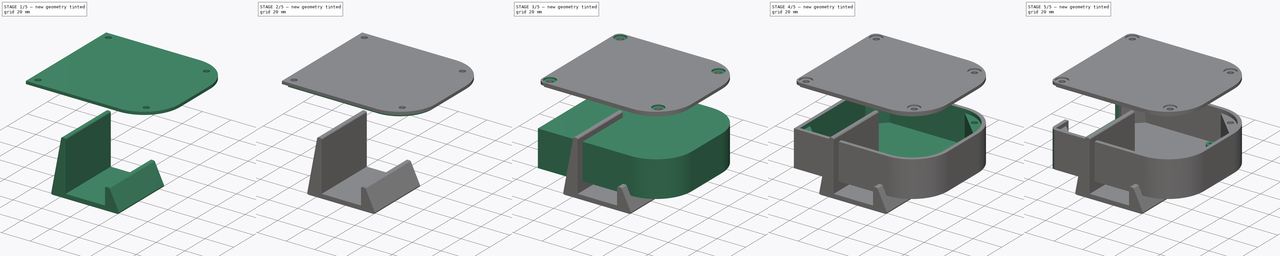
[diagram: build sequence overview — one tinted view per stage of 5, left to right]
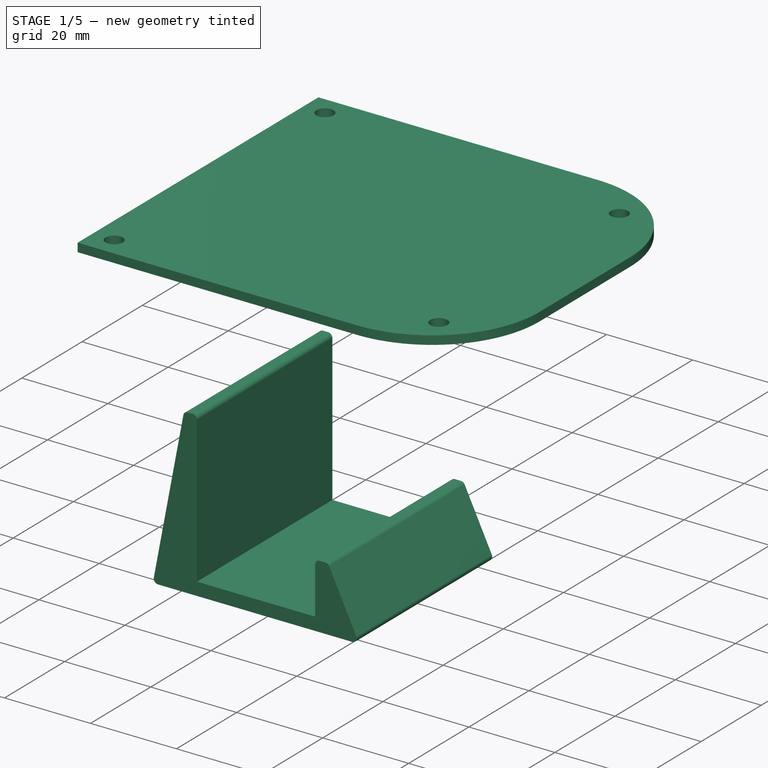
[diagram: stage 1 of 5 — iso view after this stage's code; geometry added in this stage tinted green]
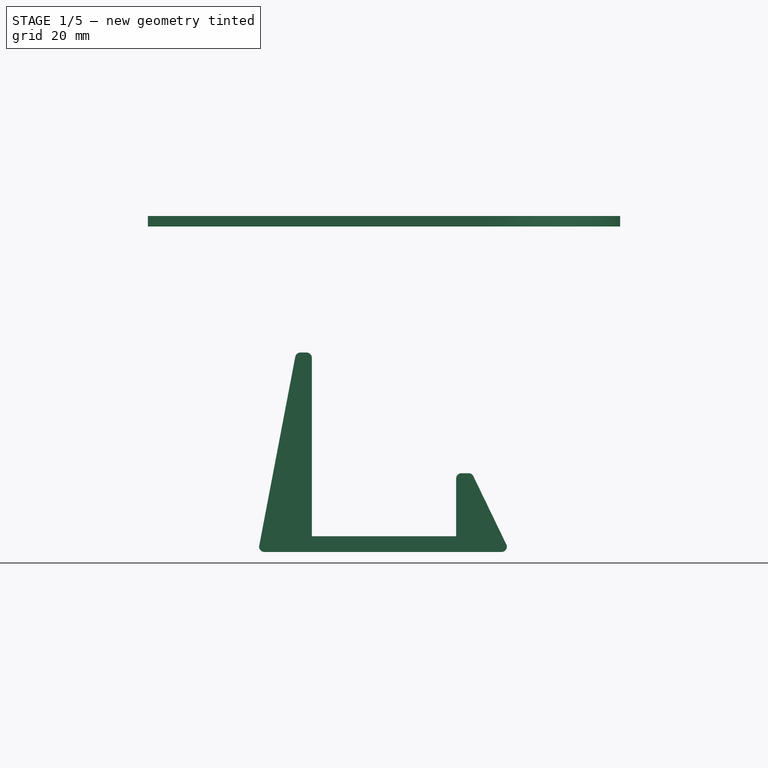
[diagram: stage 1 of 5 — front view after this stage's code; geometry added in this stage tinted green]
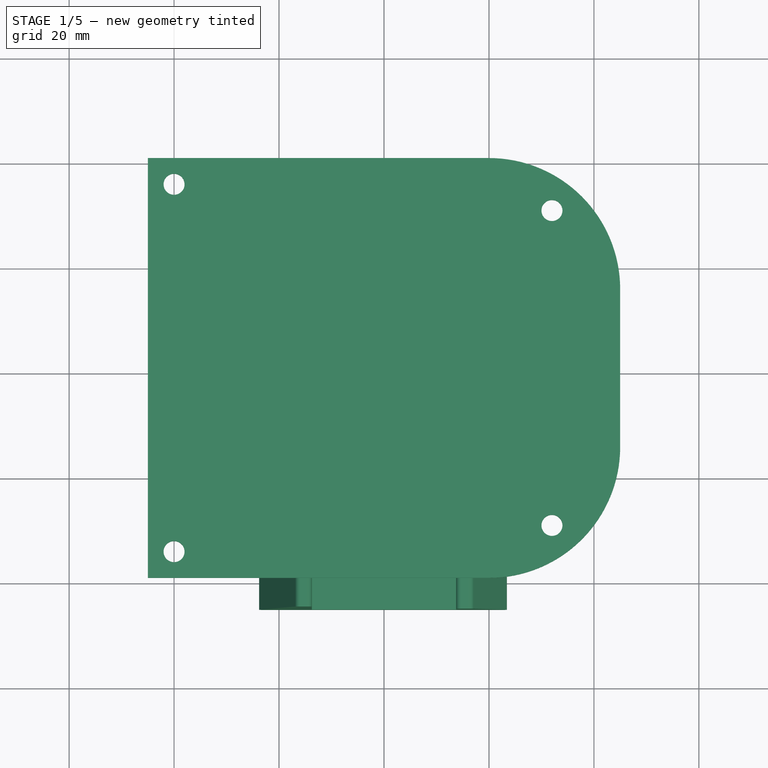
[diagram: stage 1 of 5 — top view after this stage's code; geometry added in this stage tinted green]
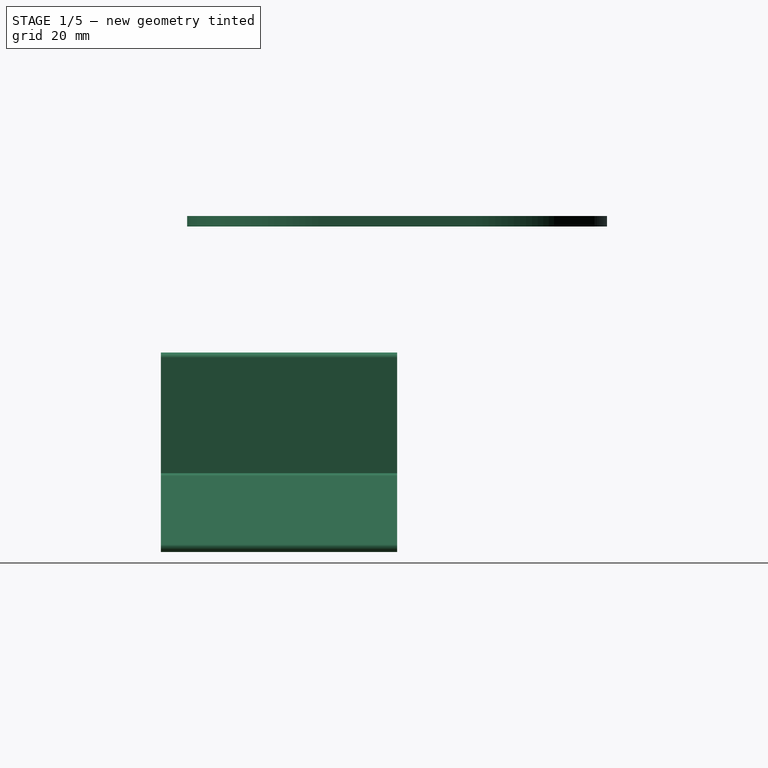
[diagram: stage 1 of 5 — right view after this stage's code; geometry added in this stage tinted green]
FCSTD DOCUMENT  (FreeCAD 0.19R24291 (Git))
Label: node_mini
License: All rights reserved
LicenseURL: http://en.wikipedia.org/wiki/All_rights_reserved
objects: Sketcher::SketchObject×10, PartDesign::Pad×7, PartDesign::Body×4, PartDesign::Pocket×3, PartDesign::Fillet×3, Part::Thickness×1, PartDesign::FeatureBase×1
note: 42 computed .brp shape members not serialized (recipe doc carries the construction recipe); baked Part::Feature solids carry a one-line shape summary decoded from their .brp

FEATURE [Sketcher::SketchObject] Sketch004
  FullyConstrained = false
  Placement = pos=(0,0,53) rot=(0,0,1;0rad)
  sketch-geometry (19):
    g0: LineSegment StartX=20 StartY=40 StartZ=0 EndX=-45 EndY=40 EndZ=0
    g1: LineSegment StartX=-45 StartY=40 StartZ=0 EndX=-45 EndY=-40 EndZ=0
    g2: LineSegment StartX=-45 StartY=-40 StartZ=0 EndX=20 EndY=-40 EndZ=0
    g3: ArcOfCircle CenterX=20 CenterY=15 CenterZ=0 NormalX=0 NormalY=0 NormalZ=1 AngleXU=0 Radius=25 StartAngle=0 EndAngle=1.5708
    g4: ArcOfCircle CenterX=20 CenterY=-15 CenterZ=0 NormalX=0 NormalY=0 NormalZ=1 AngleXU=0 Radius=25 StartAngle=4.71239 EndAngle=6.28319
    g5: LineSegment StartX=45 StartY=-15 StartZ=0 EndX=45 EndY=15 EndZ=0
    g6: LineSegment StartX=20 StartY=-15 StartZ=0 EndX=20 EndY=15 EndZ=0
    g7: LineSegment StartX=20 StartY=15 StartZ=0 EndX=20 EndY=40 EndZ=0
    g8: LineSegment StartX=20 StartY=-15 StartZ=0 EndX=20 EndY=-40 EndZ=0
    g9: LineSegment StartX=45 StartY=-15 StartZ=0 EndX=20 EndY=-15 EndZ=0
    g10: LineSegment StartX=20 StartY=-15 StartZ=0 EndX=-45 EndY=-15 EndZ=0
    g11: Circle CenterX=-40 CenterY=35 CenterZ=0 NormalX=0 NormalY=0 NormalZ=1 AngleXU=0 Radius=2
    g12: Circle CenterX=32 CenterY=30 CenterZ=0 NormalX=0 NormalY=0 NormalZ=1 AngleXU=0 Radius=2
    g13: Circle CenterX=-40 CenterY=-35 CenterZ=0 NormalX=0 NormalY=0 NormalZ=1 AngleXU=0 Radius=2
    g14: Circle CenterX=32 CenterY=-30 CenterZ=0 NormalX=0 NormalY=0 NormalZ=1 AngleXU=0 Radius=2
    g15: LineSegment StartX=-40 StartY=35 StartZ=0 EndX=32 EndY=35 EndZ=0
    g16: LineSegment StartX=32 StartY=35 StartZ=0 EndX=32 EndY=-35 EndZ=0
    g17: LineSegment StartX=32 StartY=-35 StartZ=0 EndX=-40 EndY=-35 EndZ=0
    g18: LineSegment StartX=-40 StartY=-35 StartZ=0 EndX=-40 EndY=35 EndZ=0
  constraints (47):
    c: Horizontal(g0)
    c: Coincident(g0,g1)
    c: Coincident(g1,g2)
    c: Coincident(g3,g0)
    c: Coincident(g4,g2)
    c: Coincident(g5,g4)
    c: Coincident(g5,g3)
    c: Symmetric(g4,g3,g-1)
    c: Symmetric(g4,g3,g-1)
    c: Coincident(g6,g4)
    c: Coincident(g6,g3)
    c: Coincident(g7,g3)
    c: Coincident(g7,g0)
    c: Coincident(g8,g4)
    c: Coincident(g8,g2)
    c: Vertical(g8)
    c: Vertical(g7)
    c: Coincident(g9,g4)
    c: Coincident(g9,g4)
    c: Horizontal(g9)
    c: Coincident(g10,g4)
    c: PointOnObject(g10,g1)
    c: Symmetric(g10,g4,g-2)
    c: Symmetric(g0,g1,g-1)
    c: DistanceX(g10,g4) = 90
    c: DistanceY(g1,g0) = 80
    c: DistanceY(g2,g4) = 25
    c: Coincident(g15,g16)
    c: Coincident(g16,g17)
    c: Coincident(g17,g18)
    c: Coincident(g18,g15)
    c: Horizontal(g15)
    c: Horizontal(g17)
    c: Vertical(g16)
    c: Coincident(g15,g11)
    c: Coincident(g17,g13)
    c: PointOnObject(g12,g16)
    c: Radius(g11) = 2
    c: Equal(g11,g12)
    c: Equal(g11,g14)
    c: Equal(g11,g13)
    c: Symmetric(g13,g11,g-1)
    c: Symmetric(g12,g14,g-1)
    c: DistanceY(g13,g11) = 70
    c: DistanceY(g16,g14) = 5
    c: DistanceX(g13,g16) = 72
    c: DistanceX(g13,g-1) = 40
FEATURE [PartDesign::Pad] Pad003
  AllowMultiFace = false
  Direction = (1,1,1)
  Length = 2
  Length2 = 100
  Placement = pos=(0,0,53) rot=(0,0,1;0rad)
  Profile = -> Sketch004
  Type = 0
FEATURE [PartDesign::Body] Body002
  Group = -> [Sketch004,Pad003,Sketch005,Pad004,Sketch006,Pad005,Sketch007,Pocket001,Sketch008,Pocket002,Fillet001]
  Origin = -> Origin002
  Tip = -> Fillet001
FEATURE [Sketcher::SketchObject] Sketch009
  FullyConstrained = false
  Placement = pos=(0,0,0) rot=(1,0,0;1.5708rad)
  sketch-geometry (9):
    g0: LineSegment StartX=24 StartY=-9 StartZ=0 EndX=-24 EndY=-9 EndZ=0
    g1: LineSegment StartX=-24 StartY=-9 StartZ=0 EndX=-16.75 EndY=29 EndZ=0
    g2: LineSegment StartX=-16.75 StartY=29 StartZ=0 EndX=-13.75 EndY=29 EndZ=0
    g3: LineSegment StartX=-13.75 StartY=29 StartZ=0 EndX=-13.75 EndY=-6 EndZ=0
    g4: LineSegment StartX=-13.75 StartY=-6 StartZ=0 EndX=13.75 EndY=-6 EndZ=0
    g5: LineSegment StartX=13.75 StartY=-6 StartZ=0 EndX=13.75 EndY=6 EndZ=0
    g6: LineSegment StartX=13.75 StartY=6 StartZ=0 EndX=16.75 EndY=6 EndZ=0
    g7: LineSegment StartX=16.75 StartY=6 StartZ=0 EndX=24 EndY=-9 EndZ=0
    g8: LineSegment StartX=-13.75 StartY=-6 StartZ=0 EndX=-13.75 EndY=-9 EndZ=0
  constraints (24):
    c: Coincident(g1,g0)
    c: Coincident(g2,g1)
    c: Horizontal(g2)
    c: Coincident(g3,g2)
    c: Vertical(g3)
    c: Coincident(g4,g3)
    c: Coincident(g5,g4)
    c: Coincident(g6,g5)
    c: Horizontal(g6)
    c: Coincident(g7,g6)
    c: Coincident(g7,g0)
    c: Coincident(g8,g3)
    c: PointOnObject(g8,g0)
    c: Vertical(g8)
    c: Equal(g8,g2)
    c: Equal(g2,g6)
    c: Symmetric(g3,g4,g-2)
    c: Symmetric(g0,g0,g-2)
    c: DistanceX(g4,g4) = 27.5
    c: Symmetric(g4,g5,g-1)
    c: DistanceY(g8,g8) = 3
    c: DistanceY(g3,g2) = 35
    c: DistanceY(g4,g5) = 12
    c: DistanceX(g0,g0) = 48
FEATURE [PartDesign::Pad] Pad006
  AllowMultiFace = false
  Direction = (1,1,1)
  Length = 45
  Length2 = 100
  Placement = pos=(0,0,0) rot=(1,0,0;1.5708rad)
  Profile = -> Sketch009
  Type = 0
FEATURE [PartDesign::Fillet] Fillet002
  Base = -> Pad006 [Edge1,Edge20,Edge17,Edge2,Edge5,Edge8]
  BaseFeature = -> Pad006
  Placement = pos=(0,0,0) rot=(1,0,0;1.5708rad)
  Radius = 1
  SupportTransform = false
FEATURE [PartDesign::Body] Body003
  Group = -> [Sketch009,Pad006,Fillet002]
  Origin = -> Origin003
  Placement = pos=(0,-54,0) rot=(0,0,1;0rad)
  Tip = -> Fillet002
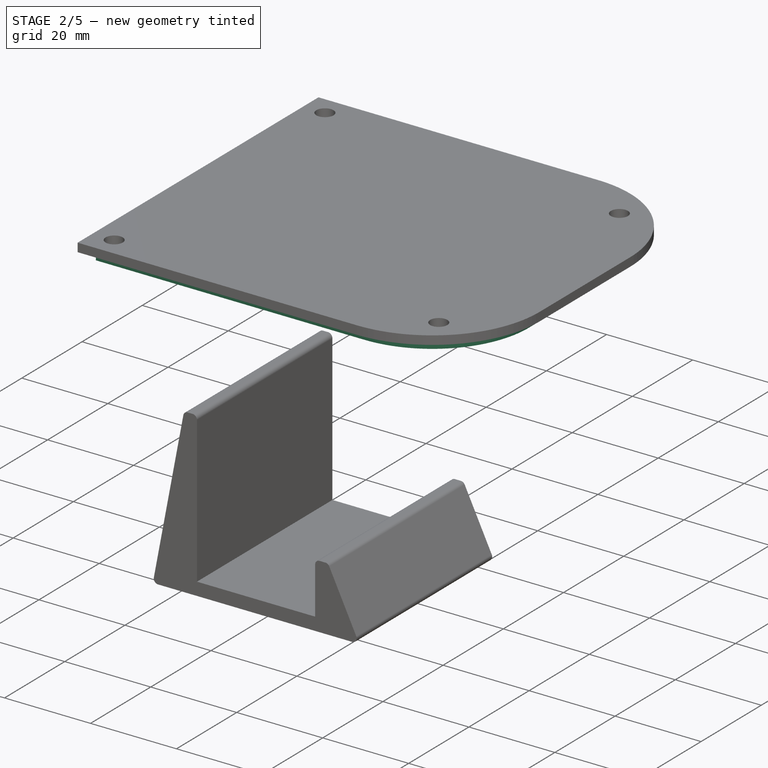
[diagram: stage 2 of 5 — iso view after this stage's code; geometry added in this stage tinted green]
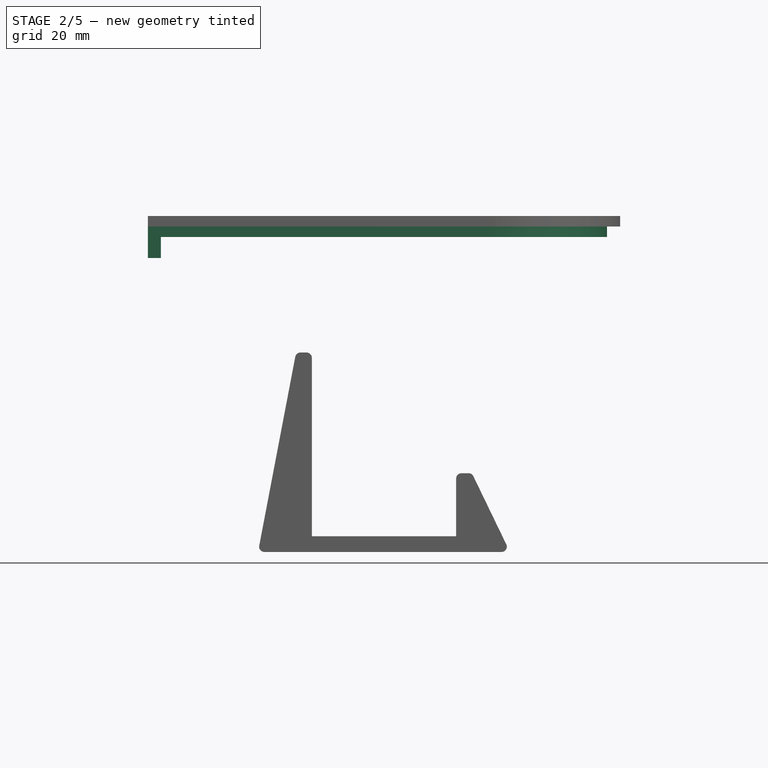
[diagram: stage 2 of 5 — front view after this stage's code; geometry added in this stage tinted green]
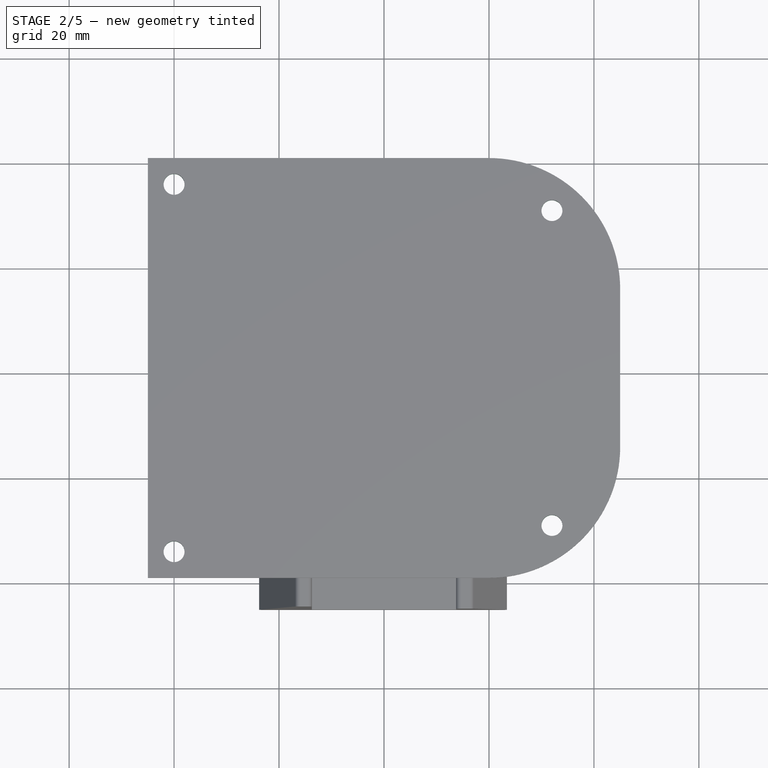
[diagram: stage 2 of 5 — top view after this stage's code; geometry added in this stage tinted green]
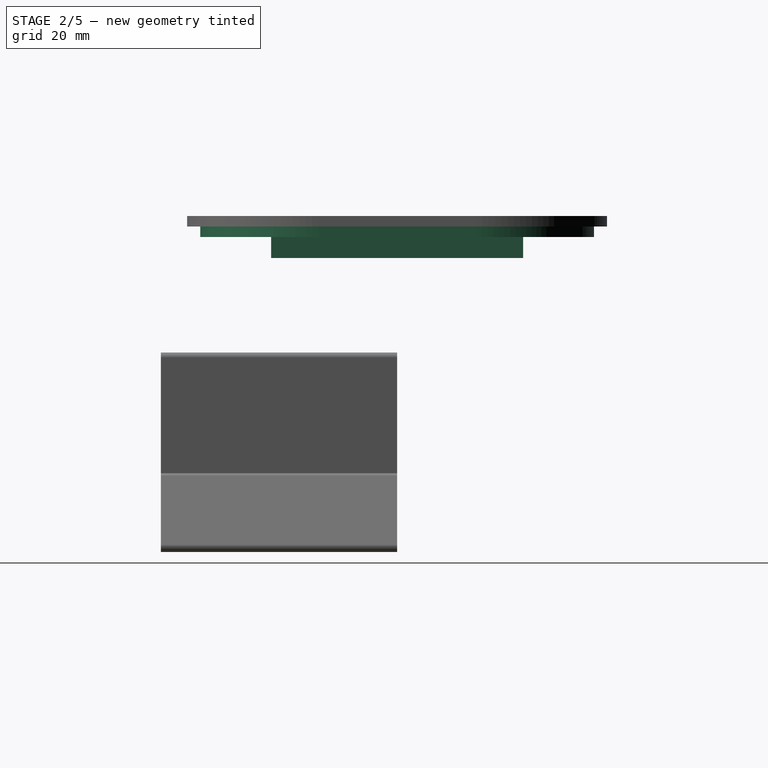
[diagram: stage 2 of 5 — right view after this stage's code; geometry added in this stage tinted green]
FEATURE [Sketcher::SketchObject] Sketch005
  ExternalGeometry = -> [Pad003]
  FullyConstrained = false
  MapMode = 5
  Placement = pos=(0,0,53) rot=(1,0,0;3.14159rad)
  Support = -> [Pad003]
  sketch-geometry (15):
    g0: LineSegment StartX=-42.5 StartY=37.5 StartZ=0 EndX=-42.5 EndY=-37.5 EndZ=0
    g1: LineSegment StartX=-42.5 StartY=-37.5 StartZ=0 EndX=20 EndY=-37.5 EndZ=0
    g2: LineSegment StartX=-42.5 StartY=37.5 StartZ=0 EndX=20 EndY=37.5 EndZ=0
    g3: LineSegment StartX=42.5 StartY=15 StartZ=0 EndX=42.5 EndY=-15 EndZ=0
    g4: ArcOfCircle CenterX=20 CenterY=15 CenterZ=0 NormalX=0 NormalY=0 NormalZ=1 AngleXU=0 Radius=22.5 StartAngle=0 EndAngle=1.5708
    g5: ArcOfCircle CenterX=20 CenterY=-15 CenterZ=0 NormalX=0 NormalY=0 NormalZ=1 AngleXU=0 Radius=22.5 StartAngle=4.71239 EndAngle=6.28319
    g6: LineSegment StartX=20 StartY=15 StartZ=0 EndX=20 EndY=37.5 EndZ=0
    g7: LineSegment StartX=20 StartY=15 StartZ=0 EndX=42.5 EndY=15 EndZ=0
    g8: LineSegment StartX=42.5 StartY=-15 StartZ=0 EndX=20 EndY=-15 EndZ=0
    g9: LineSegment StartX=20 StartY=-15 StartZ=0 EndX=20 EndY=-37.5 EndZ=0
    g10: LineSegment StartX=20 StartY=-15 StartZ=0 EndX=20 EndY=15 EndZ=0
    g11: LineSegment StartX=20 StartY=-37.5 StartZ=0 EndX=20 EndY=-40 EndZ=0
    g12: LineSegment StartX=45 StartY=-15 StartZ=0 EndX=42.5 EndY=-15 EndZ=0
    g13: LineSegment StartX=-42.5 StartY=-37.5 StartZ=0 EndX=-45 EndY=-37.5 EndZ=0
    g14: LineSegment StartX=-42.5 StartY=37.5 StartZ=0 EndX=-42.5 EndY=40 EndZ=0
  constraints (41):
    c: Coincident(g1,g0)
    c: Horizontal(g1)
    c: Coincident(g2,g0)
    c: Horizontal(g2)
    c: Vertical(g3)
    c: Coincident(g4,g2)
    c: Coincident(g4,g3)
    c: Coincident(g5,g3)
    c: Coincident(g5,g1)
    c: Coincident(g6,g4)
    c: Coincident(g6,g2)
    c: Vertical(g6)
    c: Coincident(g7,g4)
    c: Coincident(g7,g3)
    c: Horizontal(g7)
    c: Coincident(g8,g3)
    c: Coincident(g8,g5)
    c: Coincident(g9,g5)
    c: Coincident(g9,g1)
    c: Vertical(g9)
    c: Horizontal(g8)
    c: Coincident(g10,g5)
    c: Coincident(g10,g4)
    c: Vertical(g10)
    c: Symmetric(g0,g0,g-1)
    c: Coincident(g11,g1)
    c: Coincident(g11,g-3)
    c: Vertical(g11)
    c: Coincident(g12,g-6)
    c: Coincident(g12,g3)
    c: Horizontal(g12)
    c: Coincident(g13,g0)
    c: PointOnObject(g13,g-4)
    c: Horizontal(g13)
    c: Coincident(g14,g0)
    c: PointOnObject(g14,g-5)
    c: Vertical(g14)
    c: Equal(g14,g13)
    c: Equal(g13,g11)
    c: Equal(g11,g12)
    c: DistanceY(g0,g14) = 2.5
FEATURE [PartDesign::Pad] Pad004
  AllowMultiFace = false
  BaseFeature = -> Pad003
  Direction = (1,1,1)
  Length = 2
  Length2 = 100
  Placement = pos=(0,0,53) rot=(0,0,1;0rad)
  Profile = -> Sketch005
  Type = 0
FEATURE [Sketcher::SketchObject] Sketch006
  ExternalGeometry = -> [Pad004]
  FullyConstrained = true
  MapMode = 5
  Placement = pos=(0,0,53) rot=(1,0,0;3.14159rad)
  Support = -> [Pad004]
  sketch-geometry (4):
    g0: LineSegment StartX=-45 StartY=24 StartZ=0 EndX=-42.5 EndY=24 EndZ=0
    g1: LineSegment StartX=-42.5 StartY=24 StartZ=0 EndX=-42.5 EndY=-24 EndZ=0
    g2: LineSegment StartX=-42.5 StartY=-24 StartZ=0 EndX=-45 EndY=-24 EndZ=0
    g3: LineSegment StartX=-45 StartY=-24 StartZ=0 EndX=-45 EndY=24 EndZ=0
  constraints (11):
    c: Coincident(g0,g1)
    c: Coincident(g1,g2)
    c: Coincident(g2,g3)
    c: Coincident(g3,g0)
    c: Horizontal(g0)
    c: Horizontal(g2)
    c: Vertical(g1)
    c: PointOnObject(g0,g-3)
    c: PointOnObject(g1,g-4)
    c: Symmetric(g2,g0,g-1)
    c: DistanceY(g2,g0) = 48
FEATURE [PartDesign::Pad] Pad005
  AllowMultiFace = false
  BaseFeature = -> Pad004
  Direction = (1,1,1)
  Length = 6
  Length2 = 100
  Placement = pos=(0,0,53) rot=(0,0,1;0rad)
  Profile = -> Sketch006
  Type = 0
FEATURE [Sketcher::SketchObject] Sketch007
  FullyConstrained = true
  MapMode = 5
  Placement = pos=(0,0,55) rot=(0,0,1;0rad)
  Support = -> [Pad005]
  sketch-geometry (8):
    g0: LineSegment StartX=-40 StartY=35 StartZ=0 EndX=32 EndY=35 EndZ=0
    g1: LineSegment StartX=32 StartY=35 StartZ=0 EndX=32 EndY=-35 EndZ=0
    g2: LineSegment StartX=32 StartY=-35 StartZ=0 EndX=-40 EndY=-35 EndZ=0
    g3: LineSegment StartX=-40 StartY=-35 StartZ=0 EndX=-40 EndY=35 EndZ=0
    g4: Circle CenterX=-40 CenterY=35 CenterZ=0 NormalX=0 NormalY=0 NormalZ=1 AngleXU=0 Radius=2
    g5: Circle CenterX=-40 CenterY=-35 CenterZ=0 NormalX=0 NormalY=0 NormalZ=1 AngleXU=0 Radius=2
    g6: Circle CenterX=32 CenterY=-30 CenterZ=0 NormalX=0 NormalY=0 NormalZ=1 AngleXU=0 Radius=2
    g7: Circle CenterX=32 CenterY=30 CenterZ=0 NormalX=0 NormalY=0 NormalZ=1 AngleXU=0 Radius=2
  constraints (20):
    c: Coincident(g0,g1)
    c: Coincident(g1,g2)
    c: Coincident(g2,g3)
    c: Coincident(g3,g0)
    c: Horizontal(g0)
    c: Horizontal(g2)
    c: Vertical(g1)
    c: Coincident(g4,g0)
    c: Coincident(g5,g2)
    c: PointOnObject(g6,g1)
    c: Symmetric(g5,g4,g-1)
    c: Symmetric(g6,g7,g-1)
    c: Radius(g7) = 2
    c: Equal(g7,g6)
    c: Equal(g7,g4)
    c: Equal(g7,g5)
    c: DistanceY(g5,g4) = 70
    c: DistanceX(g4,g0) = 72
    c: DistanceY(g7,g0) = 5
    c: DistanceX(g4,g-1) = 40
FEATURE [PartDesign::Pocket] Pocket001
  AllowMultiFace = false
  BaseFeature = -> Pad005
  Length = 5
  Length2 = 100
  Placement = pos=(0,0,53) rot=(0,0,1;0rad)
  Profile = -> Sketch007
  Type = 1
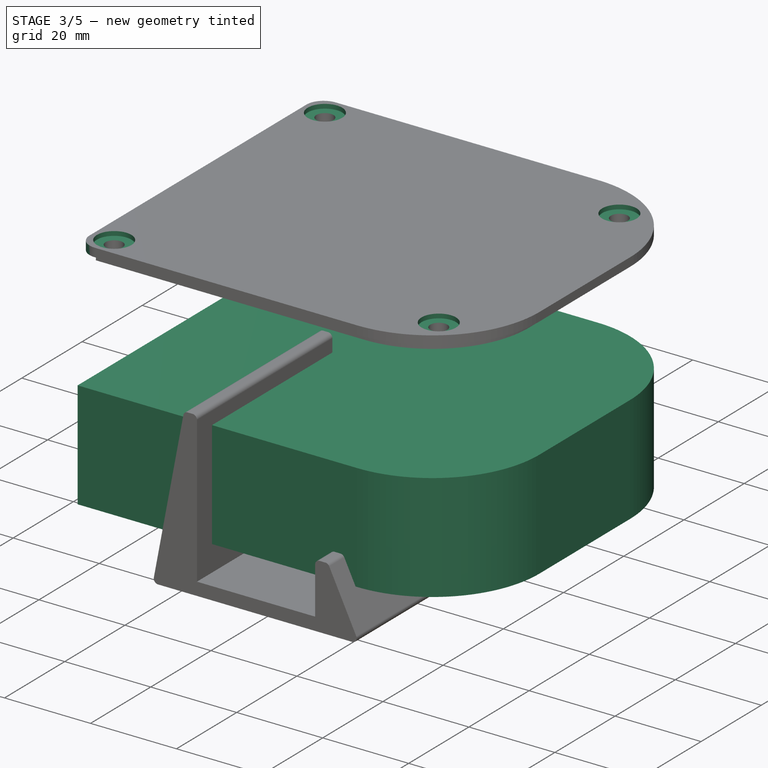
[diagram: stage 3 of 5 — iso view after this stage's code; geometry added in this stage tinted green]
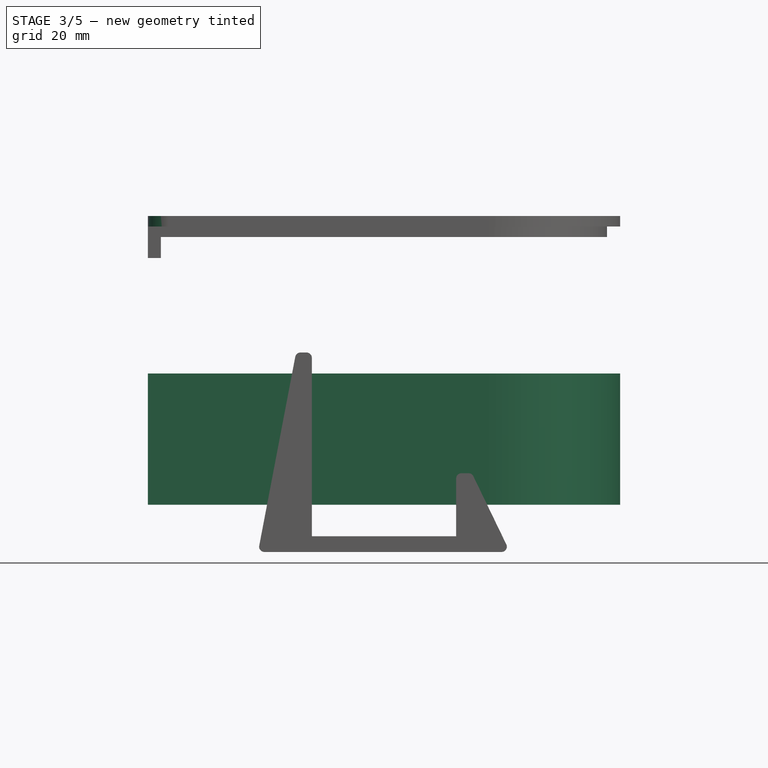
[diagram: stage 3 of 5 — front view after this stage's code; geometry added in this stage tinted green]
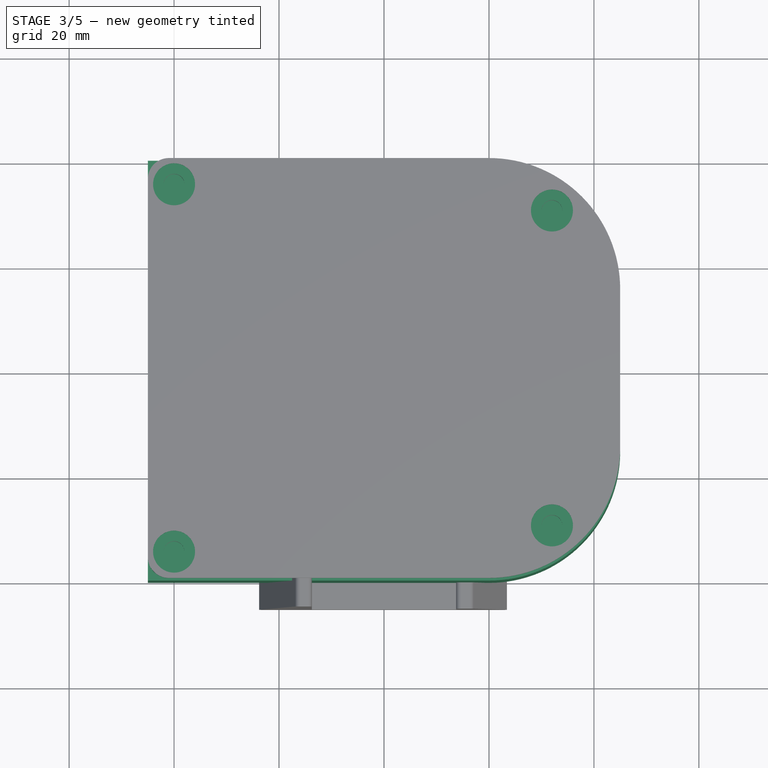
[diagram: stage 3 of 5 — top view after this stage's code; geometry added in this stage tinted green]
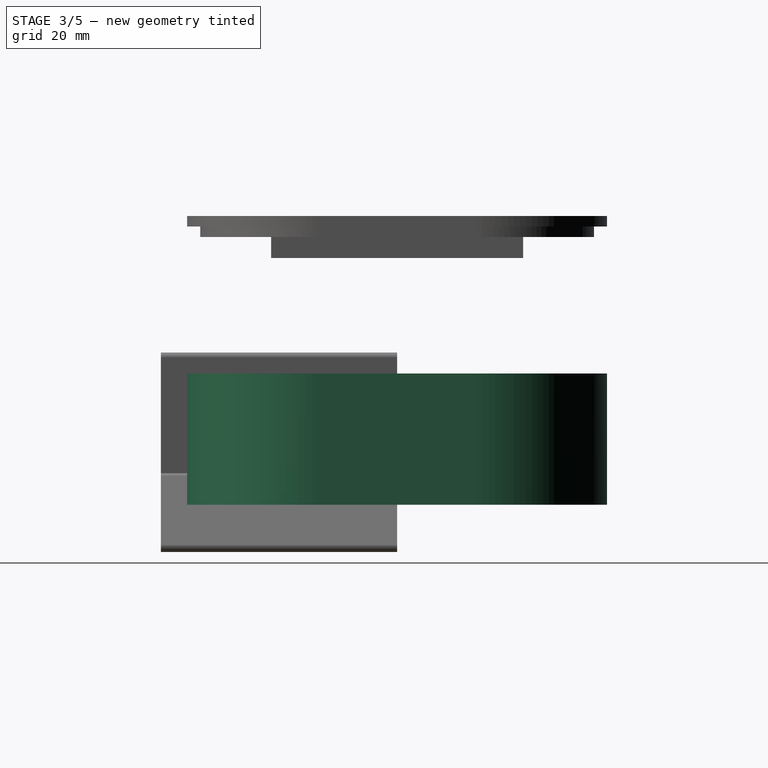
[diagram: stage 3 of 5 — right view after this stage's code; geometry added in this stage tinted green]
FEATURE [Sketcher::SketchObject] Sketch
  FullyConstrained = false
  sketch-geometry (11):
    g0: LineSegment StartX=20 StartY=40 StartZ=0 EndX=-45 EndY=40 EndZ=0
    g1: LineSegment StartX=-45 StartY=40 StartZ=0 EndX=-45 EndY=-40 EndZ=0
    g2: LineSegment StartX=-45 StartY=-40 StartZ=0 EndX=20 EndY=-40 EndZ=0
    g3: ArcOfCircle CenterX=20 CenterY=15 CenterZ=0 NormalX=0 NormalY=0 NormalZ=1 AngleXU=0 Radius=25 StartAngle=0 EndAngle=1.5708
    g4: ArcOfCircle CenterX=20 CenterY=-15 CenterZ=0 NormalX=0 NormalY=0 NormalZ=1 AngleXU=0 Radius=25 StartAngle=4.71239 EndAngle=6.28319
    g5: LineSegment StartX=45 StartY=-15 StartZ=0 EndX=45 EndY=15 EndZ=0
    g6: LineSegment StartX=20 StartY=-15 StartZ=0 EndX=20 EndY=15 EndZ=0
    g7: LineSegment StartX=20 StartY=15 StartZ=0 EndX=20 EndY=40 EndZ=0
    g8: LineSegment StartX=20 StartY=-15 StartZ=0 EndX=20 EndY=-40 EndZ=0
    g9: LineSegment StartX=45 StartY=-15 StartZ=0 EndX=20 EndY=-15 EndZ=0
    g10: LineSegment StartX=20 StartY=-15 StartZ=0 EndX=-45 EndY=-15 EndZ=0
  constraints (27):
    c: Horizontal(g0)
    c: Coincident(g0,g1)
    c: Coincident(g1,g2)
    c: Coincident(g3,g0)
    c: Coincident(g4,g2)
    c: Coincident(g5,g4)
    c: Coincident(g5,g3)
    c: Symmetric(g4,g3,g-1)
    c: Symmetric(g4,g3,g-1)
    c: Coincident(g6,g4)
    c: Coincident(g6,g3)
    c: Coincident(g7,g3)
    c: Coincident(g7,g0)
    c: Coincident(g8,g4)
    c: Coincident(g8,g2)
    c: Vertical(g8)
    c: Vertical(g7)
    c: Coincident(g9,g4)
    c: Coincident(g9,g4)
    c: Horizontal(g9)
    c: Coincident(g10,g4)
    c: PointOnObject(g10,g1)
    c: Symmetric(g10,g4,g-2)
    c: Symmetric(g0,g1,g-1)
    c: DistanceX(g10,g4) = 90
    c: DistanceY(g1,g0) = 80
    c: DistanceY(g2,g4) = 25
FEATURE [PartDesign::Pad] Pad
  AllowMultiFace = false
  Direction = (1,1,1)
  Length = 25
  Length2 = 100
  Profile = -> Sketch
  Type = 0
FEATURE [PartDesign::Body] Body001
  BaseFeature = -> Thickness
  Group = -> [BaseFeature,Sketch001,Pad001,Sketch002,Pad002,Sketch003,Pocket,Fillet]
  Origin = -> Origin001
  Tip = -> Fillet
FEATURE [Sketcher::SketchObject] Sketch008
  ExternalGeometry = -> [Pocket001]
  FullyConstrained = true
  MapMode = 5
  Placement = pos=(0,0,55) rot=(0,0,1;0rad)
  Support = -> [Pocket001]
  sketch-geometry (4):
    g0: Circle CenterX=32 CenterY=30 CenterZ=0 NormalX=0 NormalY=0 NormalZ=1 AngleXU=0 Radius=4
    g1: Circle CenterX=-40 CenterY=35 CenterZ=0 NormalX=0 NormalY=0 NormalZ=1 AngleXU=0 Radius=4
    g2: Circle CenterX=32 CenterY=-30 CenterZ=0 NormalX=0 NormalY=0 NormalZ=1 AngleXU=0 Radius=4
    g3: Circle CenterX=-40 CenterY=-35 CenterZ=0 NormalX=0 NormalY=0 NormalZ=1 AngleXU=0 Radius=4
  constraints (8):
    c: Coincident(g0,g-4)
    c: Coincident(g1,g-3)
    c: Coincident(g2,g-5)
    c: Coincident(g3,g-6)
    c: Radius(g3) = 4
    c: Equal(g3,g1)
    c: Equal(g3,g0)
    c: Equal(g3,g2)
FEATURE [PartDesign::Pocket] Pocket002
  AllowMultiFace = false
  BaseFeature = -> Pocket001
  Length = 1
  Length2 = 100
  Placement = pos=(0,0,53) rot=(0,0,1;0rad)
  Profile = -> Sketch008
  Type = 0
FEATURE [PartDesign::Fillet] Fillet001
  Base = -> Pocket002 [Edge2,Edge8]
  BaseFeature = -> Pocket002
  Placement = pos=(0,0,53) rot=(0,0,1;0rad)
  Radius = 4
  SupportTransform = false
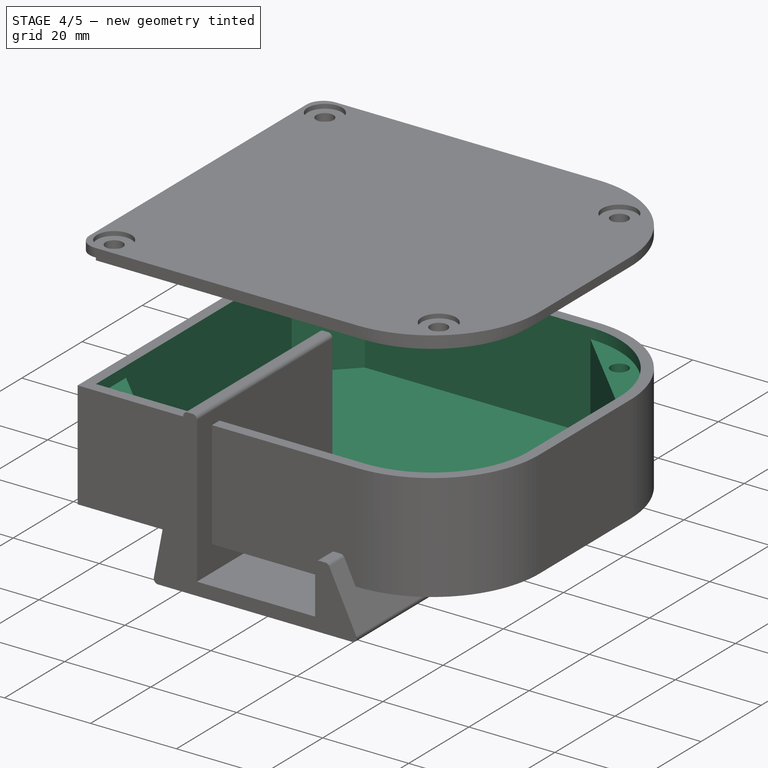
[diagram: stage 4 of 5 — iso view after this stage's code; geometry added in this stage tinted green]
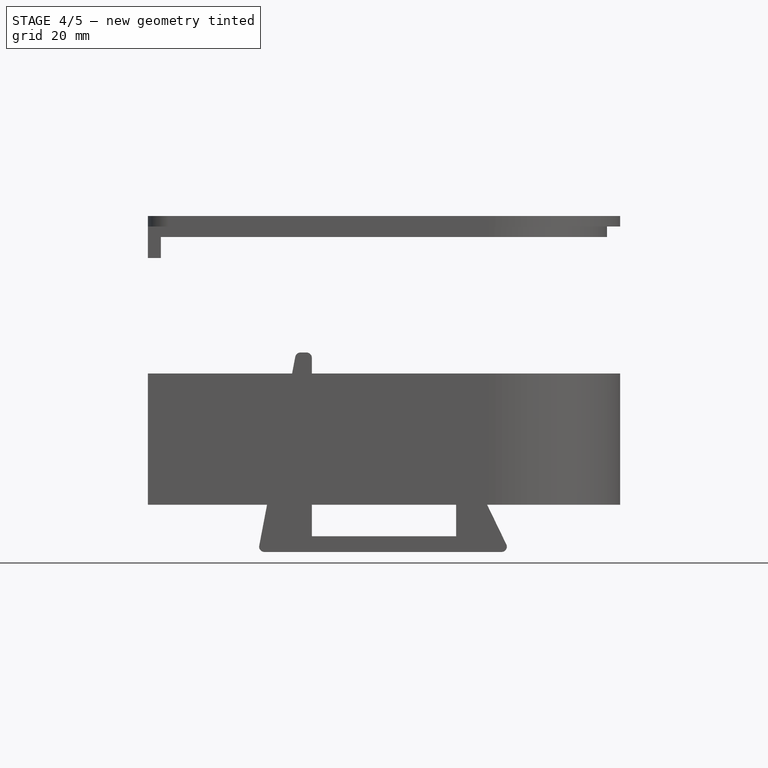
[diagram: stage 4 of 5 — front view after this stage's code; geometry added in this stage tinted green]
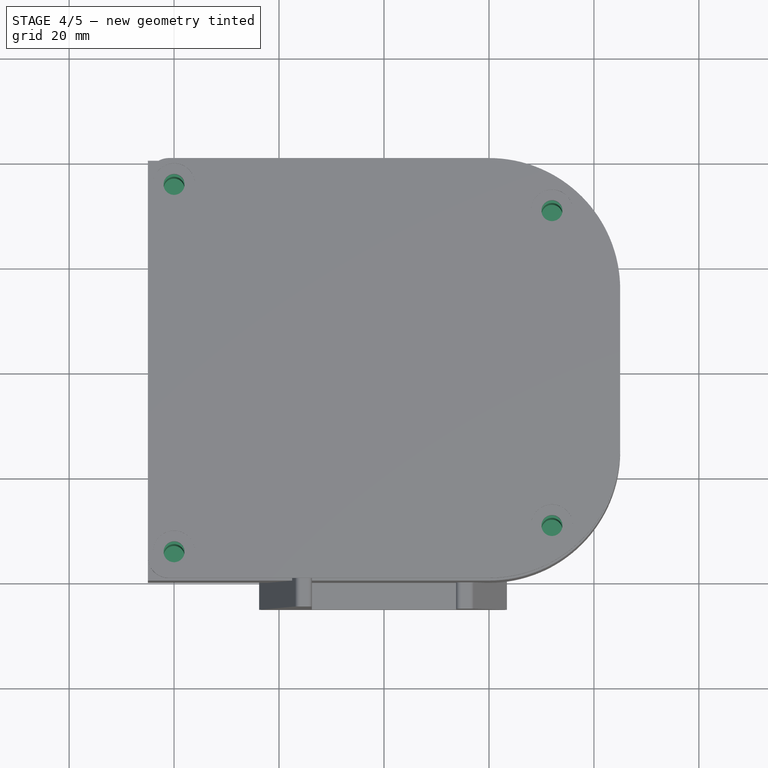
[diagram: stage 4 of 5 — top view after this stage's code; geometry added in this stage tinted green]
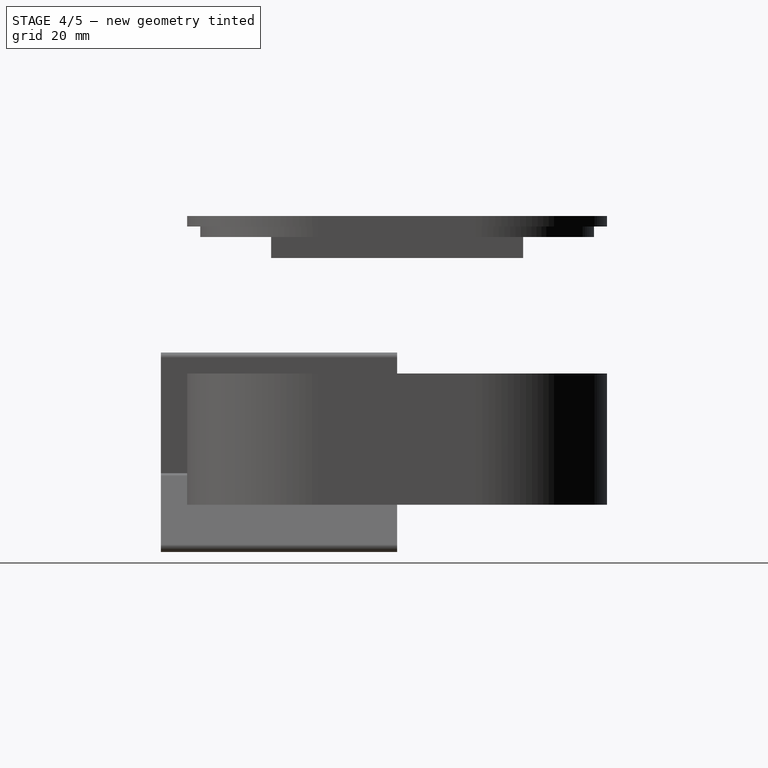
[diagram: stage 4 of 5 — right view after this stage's code; geometry added in this stage tinted green]
FEATURE [PartDesign::Body] Body
  Group = -> [Sketch,Pad]
  Origin = -> Origin
  Tip = -> Pad
FEATURE [Part::Thickness] Thickness
  Faces = -> Pad [Face8]
  Intersection = false
  Join = 0
  Mode = 0
  SelfIntersection = false
  Value = -2.5
FEATURE [PartDesign::FeatureBase] BaseFeature
  BaseFeature = -> Thickness
FEATURE [Sketcher::SketchObject] Sketch001
  ExternalGeometry = -> [BaseFeature]
  FullyConstrained = false
  MapMode = 5
  Placement = pos=(0,0,2.5) rot=(0,0,1;0rad)
  Support = -> [BaseFeature]
  sketch-geometry (23):
    g0: LineSegment StartX=20 StartY=37.5 StartZ=0 EndX=42.5 EndY=15 EndZ=0
    g1: LineSegment StartX=42.5 StartY=-15 StartZ=0 EndX=20 EndY=-37.5 EndZ=0
    g2: LineSegment StartX=-42.5 StartY=37.5 StartZ=0 EndX=-32.5 EndY=37.5 EndZ=0
    g3: LineSegment StartX=-32.5 StartY=37.5 StartZ=0 EndX=-32.5 EndY=27.5 EndZ=0
    g4: LineSegment StartX=-32.5 StartY=27.5 StartZ=0 EndX=-42.5 EndY=27.5 EndZ=0
    g5: LineSegment StartX=-42.5 StartY=27.5 StartZ=0 EndX=-42.5 EndY=37.5 EndZ=0
    g6: LineSegment StartX=-42.5 StartY=27.5 StartZ=0 EndX=-32.5 EndY=37.5 EndZ=0
    g7: LineSegment StartX=-42.5 StartY=-37.5 StartZ=0 EndX=-32.5 EndY=-37.5 EndZ=0
    g8: LineSegment StartX=-32.5 StartY=-37.5 StartZ=0 EndX=-32.5 EndY=-27.5 EndZ=0
    g9: LineSegment StartX=-32.5 StartY=-27.5 StartZ=0 EndX=-42.5 EndY=-27.5 EndZ=0
    g10: LineSegment StartX=-42.5 StartY=-27.5 StartZ=0 EndX=-42.5 EndY=-37.5 EndZ=0
    g11: LineSegment StartX=-42.5 StartY=-27.5 StartZ=0 EndX=-32.5 EndY=-37.5 EndZ=0
    g12: LineSegment StartX=-40 StartY=35 StartZ=0 EndX=-40 EndY=-35 EndZ=0
    g13: Circle CenterX=-40 CenterY=35 CenterZ=0 NormalX=0 NormalY=0 NormalZ=1 AngleXU=0 Radius=2
    g14: Circle CenterX=-40 CenterY=-35 CenterZ=0 NormalX=0 NormalY=0 NormalZ=1 AngleXU=0 Radius=2
    g15: LineSegment StartX=-40 StartY=35 StartZ=0 EndX=-32.5 EndY=27.5 EndZ=0
    g16: LineSegment StartX=32 StartY=-30 StartZ=0 EndX=32 EndY=30 EndZ=0
    g17: Circle CenterX=32 CenterY=30 CenterZ=0 NormalX=0 NormalY=0 NormalZ=1 AngleXU=0 Radius=2
    g18: Circle CenterX=32 CenterY=-30 CenterZ=0 NormalX=0 NormalY=0 NormalZ=1 AngleXU=0 Radius=2
    g19: ArcOfCircle CenterX=20 CenterY=15 CenterZ=0 NormalX=0 NormalY=0 NormalZ=1 AngleXU=0 Radius=22.5 StartAngle=2e-16 EndAngle=1.5708
    g20: ArcOfCircle CenterX=20 CenterY=-15 CenterZ=0 NormalX=0 NormalY=0 NormalZ=1 AngleXU=0 Radius=22.5 StartAngle=4.71239 EndAngle=6.28319
    g21: LineSegment StartX=-40 StartY=35 StartZ=0 EndX=32 EndY=35 EndZ=0
    g22: LineSegment StartX=32 StartY=30 StartZ=0 EndX=32 EndY=35 EndZ=0
  constraints (57):
    c: Coincident(g0,g-5)
    c: Coincident(g0,g-3)
    c: Coincident(g1,g-4)
    c: Coincident(g1,g-6)
    c: Coincident(g2,g3)
    c: Coincident(g3,g4)
    c: Coincident(g4,g5)
    c: Coincident(g5,g2)
    c: Horizontal(g2)
    c: Horizontal(g4)
    c: Vertical(g3)
    c: Vertical(g5)
    c: Coincident(g2,g-7)
    c: Coincident(g6,g4)
    c: Coincident(g6,g2)
    c: Equal(g4,g3)
    c: Coincident(g7,g8)
    c: Coincident(g8,g9)
    c: Coincident(g9,g10)
    c: Coincident(g10,g7)
    c: Horizontal(g7)
    c: Horizontal(g9)
    c: Vertical(g8)
    c: Vertical(g10)
    c: Coincident(g7,g-7)
    c: Coincident(g11,g9)
    c: Coincident(g11,g7)
    c: Equal(g8,g9)
    c: Equal(g9,g4)
    c: Symmetric(g12,g12,g-1)
    c: Coincident(g13,g12)
    c: Coincident(g14,g12)
    c: Coincident(g15,g13)
    c: Coincident(g15,g3)
    c: Angle(g3,g15) = 0.785398
    c: Coincident(g17,g16)
    c: Coincident(g18,g16)
    c: Symmetric(g18,g17,g-1)
    c: Radius(g17) = 2
    c: Equal(g17,g18)
    c: Equal(g17,g14)
    c: Equal(g17,g13)
    c: Coincident(g19,g-3)
    c: Coincident(g19,g0)
    c: Coincident(g19,g0)
    c: Coincident(g20,g-4)
    c: Coincident(g20,g1)
    c: Coincident(g20,g1)
    c: Coincident(g21,g13)
    c: Horizontal(g21)
    c: Coincident(g22,g17)
    c: Coincident(g22,g21)
    c: Vertical(g22)
    c: DistanceX(g13,g21) = 72
    c: DistanceY(g17,g21) = 5
    c: DistanceY(g3,g2) = 10
    c: DistanceY(g14,g13) = 70
FEATURE [PartDesign::Pad] Pad001
  AllowMultiFace = false
  BaseFeature = -> BaseFeature
  Direction = (1,1,1)
  Length = 20
  Length2 = 100
  Profile = -> Sketch001
  Type = 0
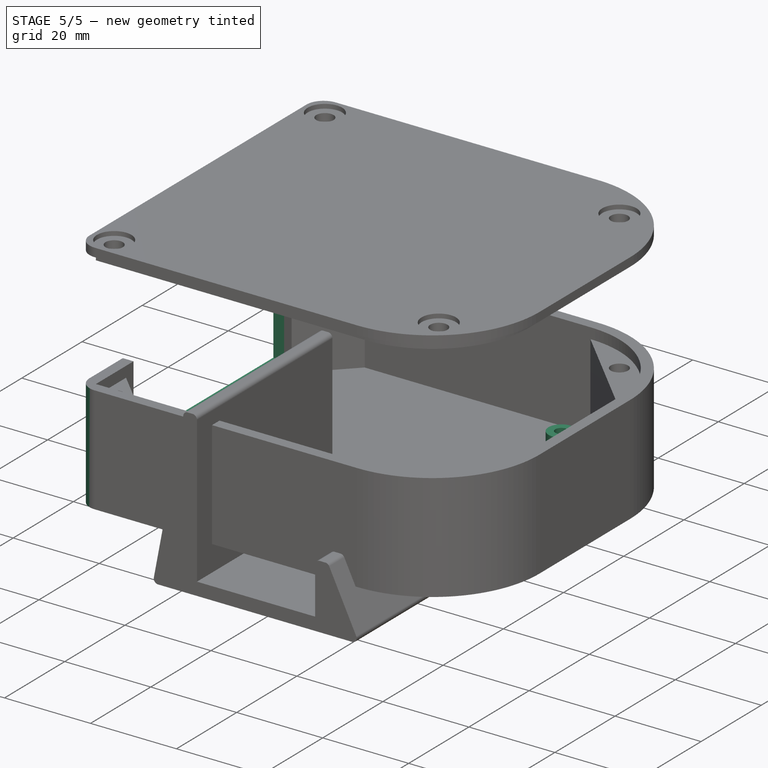
[diagram: stage 5 of 5 — iso view after this stage's code; geometry added in this stage tinted green]
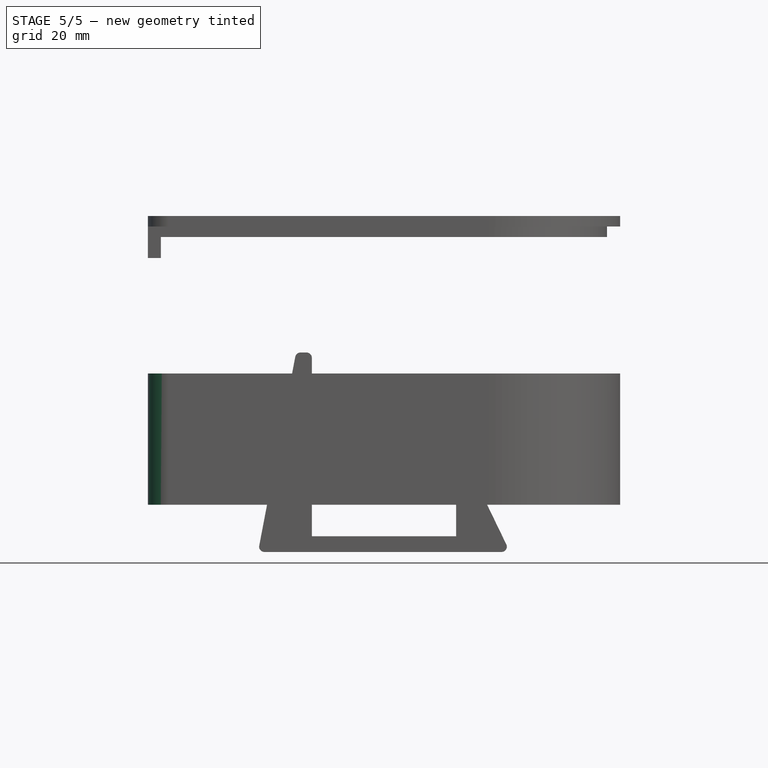
[diagram: stage 5 of 5 — front view after this stage's code; geometry added in this stage tinted green]
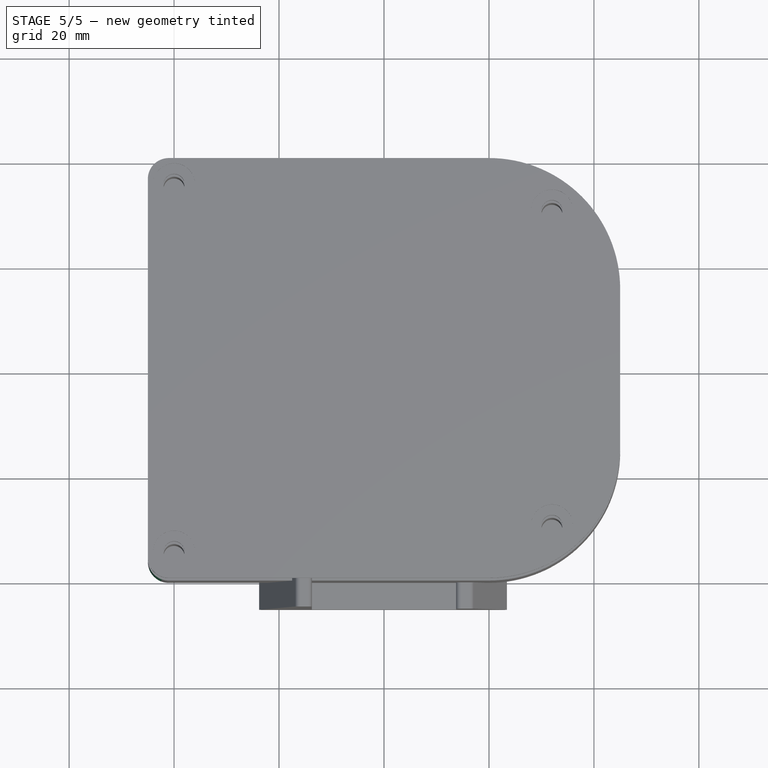
[diagram: stage 5 of 5 — top view after this stage's code; geometry added in this stage tinted green]
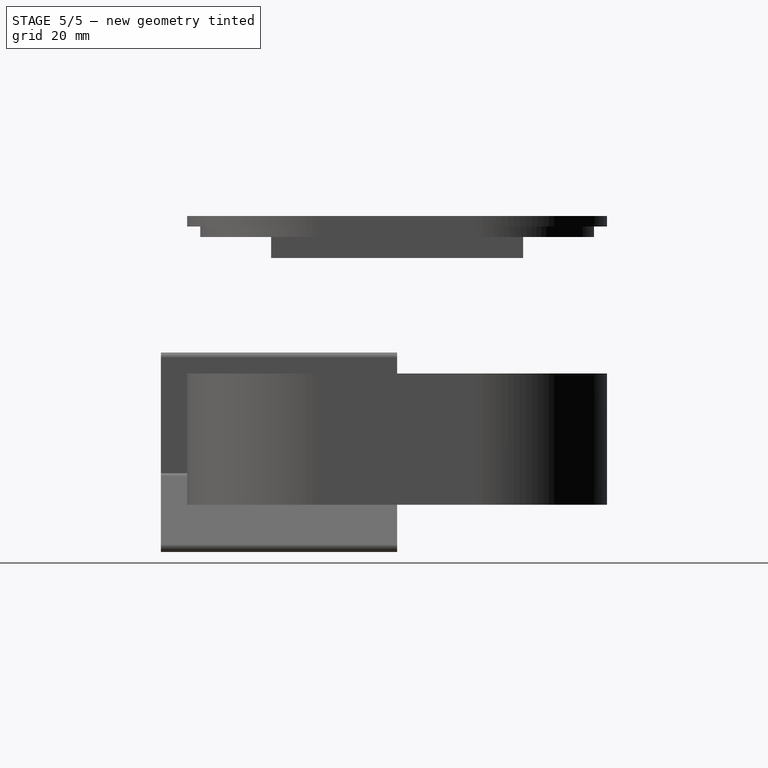
[diagram: stage 5 of 5 — right view after this stage's code; geometry added in this stage tinted green]
FEATURE [Sketcher::SketchObject] Sketch002
  FullyConstrained = false
  MapMode = 5
  Placement = pos=(0,0,2.5) rot=(0,0,1;0rad)
  Support = -> [Pad001]
  sketch-geometry (12):
    g0: LineSegment StartX=-37 StartY=25 StartZ=0 EndX=22 EndY=25 EndZ=0
    g1: LineSegment StartX=22 StartY=25 StartZ=0 EndX=22 EndY=-25 EndZ=0
    g2: LineSegment StartX=22 StartY=-25 StartZ=0 EndX=-37 EndY=-25 EndZ=0
    g3: LineSegment StartX=-37 StartY=-25 StartZ=0 EndX=-37 EndY=25 EndZ=0
    g4: Circle CenterX=-37 CenterY=25 CenterZ=0 NormalX=0 NormalY=0 NormalZ=1 AngleXU=0 Radius=3
    g5: Circle CenterX=-37 CenterY=25 CenterZ=0 NormalX=0 NormalY=0 NormalZ=1 AngleXU=0 Radius=1.4
    g6: Circle CenterX=22 CenterY=25 CenterZ=0 NormalX=0 NormalY=0 NormalZ=1 AngleXU=0 Radius=3
    g7: Circle CenterX=22 CenterY=25 CenterZ=0 NormalX=0 NormalY=0 NormalZ=1 AngleXU=0 Radius=1.4
    g8: Circle CenterX=-37 CenterY=-25 CenterZ=0 NormalX=0 NormalY=0 NormalZ=1 AngleXU=0 Radius=3
    g9: Circle CenterX=-37 CenterY=-25 CenterZ=0 NormalX=0 NormalY=0 NormalZ=1 AngleXU=0 Radius=1.4
    g10: Circle CenterX=22 CenterY=-25 CenterZ=0 NormalX=0 NormalY=0 NormalZ=1 AngleXU=0 Radius=3
    g11: Circle CenterX=22 CenterY=-25 CenterZ=0 NormalX=0 NormalY=0 NormalZ=1 AngleXU=0 Radius=1.4
  constraints (27):
    c: Coincident(g0,g1)
    c: Coincident(g1,g2)
    c: Coincident(g2,g3)
    c: Coincident(g3,g0)
    c: Horizontal(g0)
    c: Horizontal(g2)
    c: Vertical(g1)
    c: Coincident(g4,g0)
    c: Coincident(g5,g0)
    c: Coincident(g6,g0)
    c: Coincident(g7,g0)
    c: Coincident(g8,g2)
    c: Coincident(g9,g2)
    c: Coincident(g10,g1)
    c: Coincident(g11,g1)
    c: Radius(g5) = 1.4
    c: Equal(g5,g7)
    c: Equal(g5,g11)
    c: Equal(g5,g9)
    c: Radius(g4) = 3
    c: Equal(g4,g8)
    c: Equal(g4,g10)
    c: Equal(g4,g6)
    c: DistanceX(g8,g10) = 59
    c: DistanceY(g8,g4) = 50
    c: Symmetric(g4,g8,g-1)
    c: DistanceX(g8,g-1) = 37
FEATURE [PartDesign::Pad] Pad002
  AllowMultiFace = false
  BaseFeature = -> Pad001
  Direction = (1,1,1)
  Length = 6
  Length2 = 100
  Profile = -> Sketch002
  Type = 0
FEATURE [Sketcher::SketchObject] Sketch003
  ExternalGeometry = -> [Pad002]
  FullyConstrained = false
  MapMode = 5
  Placement = pos=(-45,0,0) rot=(0.57735,-0.57735,-0.57735;2.0944rad)
  Support = -> [Pad002]
  sketch-geometry (6):
    g0: LineSegment StartX=-25 StartY=36 StartZ=0 EndX=25 EndY=36 EndZ=0
    g1: LineSegment StartX=25 StartY=36 StartZ=0 EndX=25 EndY=6 EndZ=0
    g2: LineSegment StartX=25 StartY=6 StartZ=0 EndX=-25 EndY=6 EndZ=0
    g3: LineSegment StartX=-25 StartY=6 StartZ=0 EndX=-25 EndY=36 EndZ=0
    g4: LineSegment StartX=-25 StartY=36 StartZ=0 EndX=-25 EndY=25 EndZ=0
    g5: LineSegment StartX=-25 StartY=6 StartZ=0 EndX=-25 EndY=0 EndZ=0
  constraints (17):
    c: Coincident(g0,g1)
    c: Coincident(g1,g2)
    c: Coincident(g2,g3)
    c: Coincident(g3,g0)
    c: Horizontal(g0)
    c: Vertical(g1)
    c: Vertical(g3)
    c: Symmetric(g1,g2,g-2)
    c: Coincident(g4,g0)
    c: Vertical(g4)
    c: PointOnObject(g4,g-3)
    c: Coincident(g5,g2)
    c: PointOnObject(g5,g-1)
    c: Vertical(g5)
    c: DistanceX(g0,g0) = 50
    c: DistanceY(g1,g0) = 30
    c: DistanceY(g5,g2) = 6
FEATURE [PartDesign::Pocket] Pocket
  AllowMultiFace = false
  BaseFeature = -> Pad002
  Length = 3
  Length2 = 100
  Profile = -> Sketch003
  Type = 0
FEATURE [PartDesign::Fillet] Fillet
  Base = -> Pocket [Edge9,Edge2]
  BaseFeature = -> Pocket
  Radius = 4
  SupportTransform = false
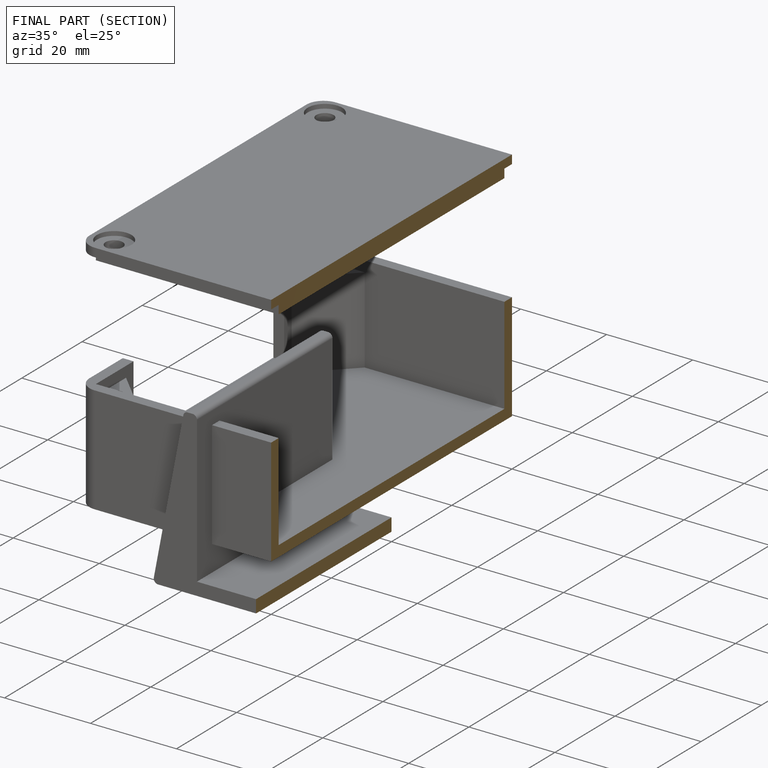
[diagram: finished part — half-section view (interior)]
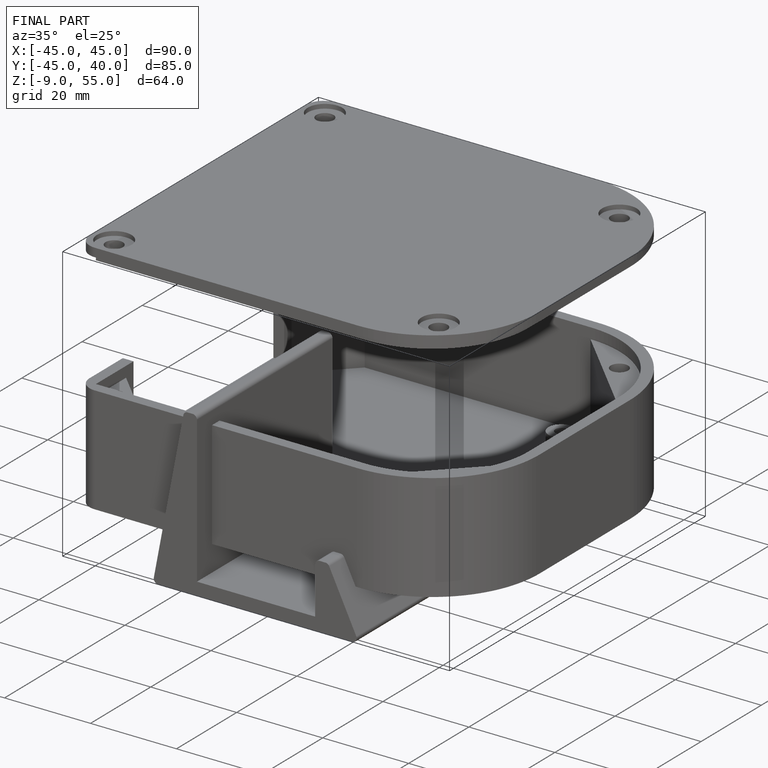
[diagram: finished part — iso view with bounding-box wireframe]
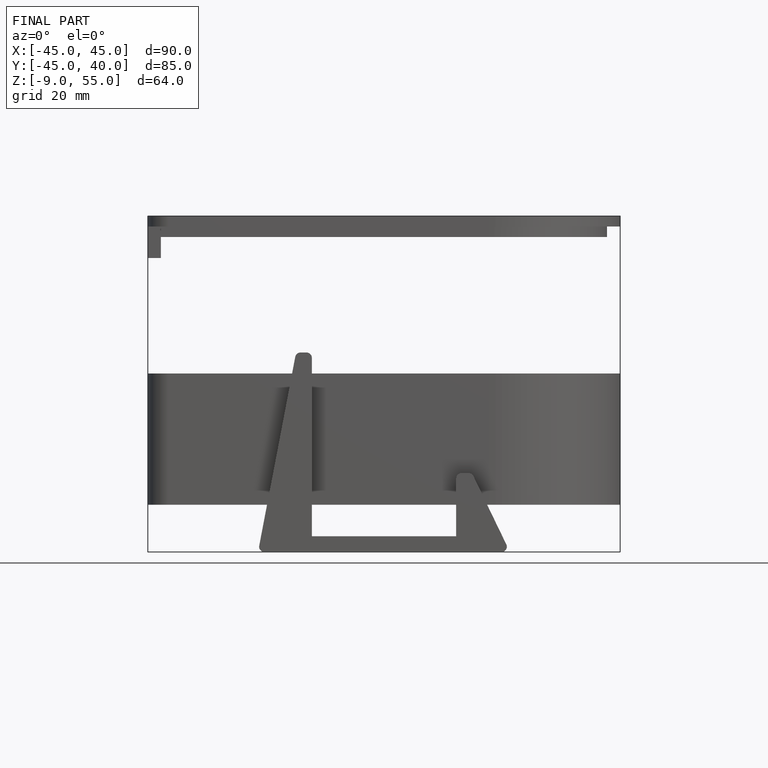
[diagram: finished part — front view with bounding-box wireframe]
